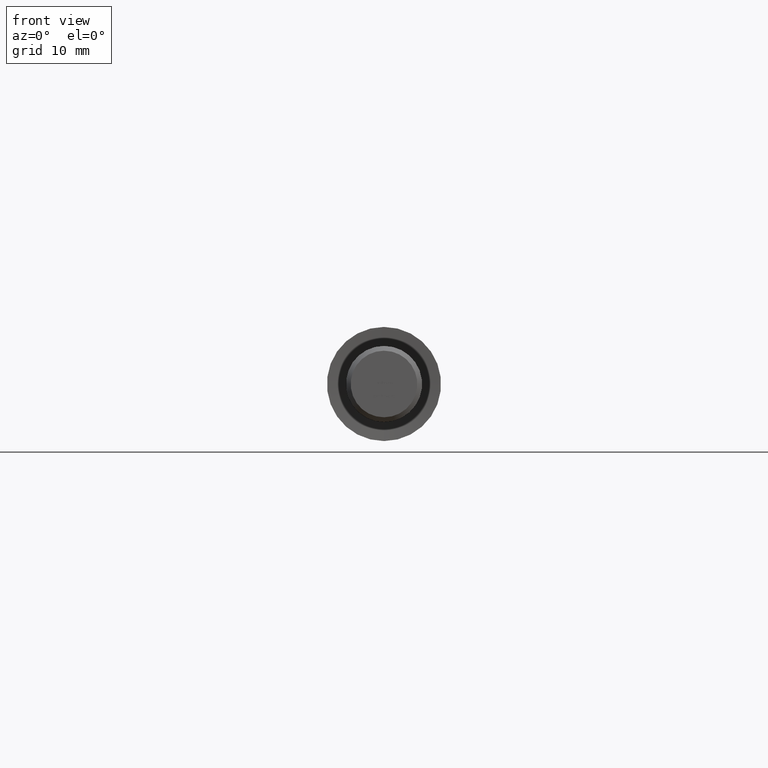
[diagram: clean part render]
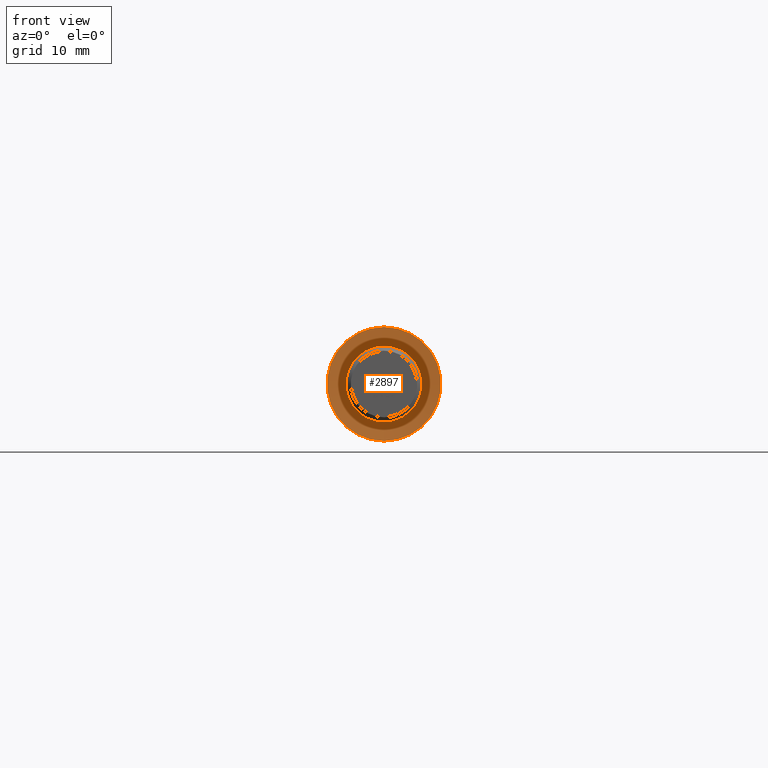
[diagram: same view with one face highlighted and labeled with its STEP entity id]
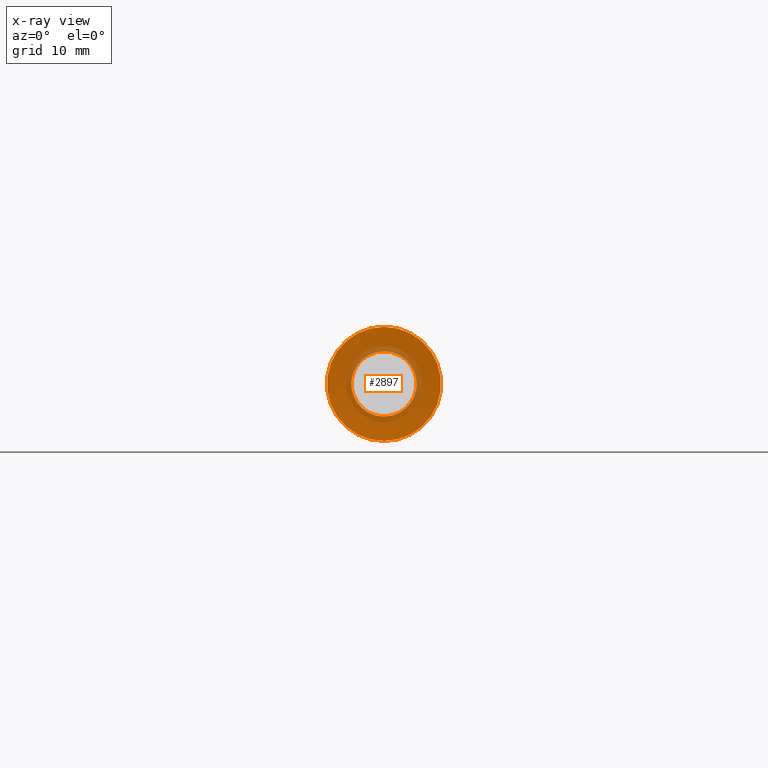
[diagram: x-ray of the same camera — body ghosted, the highlighted face saturated]
A machine part, front view. The second image highlights one B-rep face of the part: STEP entity #2897.
The next image is the same camera in x-ray: the body ghosted, the highlighted face saturated — about 18% of this face is hidden behind the body in this view.
In plain terms, the highlighted conical surface has half-angle 85 deg.
Its self-contained STEP definition (entity closure, byte-faithful):
#1421 = DIRECTION ( 'NONE',  ( 0.000000000000000000, 0.000000000000000000, -1.000000000000000000 ) ) ;
#1546 = CARTESIAN_POINT ( 'NONE',  ( 0.000000000000000000, 0.2253502873125028116, 0.000000000000000000 ) ) ;
#2897 = ADVANCED_FACE ( 'NONE', ( #12618, #10743 ), #9657, .F. ) ;
#4171 = EDGE_LOOP ( 'NONE', ( #7356 ) ) ;
#4565 = VERTEX_POINT ( 'NONE', #12261 ) ;
#4755 = DIRECTION ( 'NONE',  ( 0.000000000000000000, 0.000000000000000000, -1.000000000000000000 ) ) ;
#5045 = CIRCLE ( 'NONE', #11776, 3.424234429575815142 ) ;
#5265 = EDGE_CURVE ( 'NONE', #4565, #4565, #11034, .T. ) ;
#5460 = ORIENTED_EDGE ( 'NONE', *, *, #5265, .T. ) ;
#5676 = CARTESIAN_POINT ( 'NONE',  ( 0.000000000000000000, 0.2253502873125028116, 0.000000000000000000 ) ) ;
#5765 = AXIS2_PLACEMENT_3D ( 'NONE', #12584, #8671, #4755 ) ;
#6342 = EDGE_CURVE ( 'NONE', #7851, #7851, #5045, .T. ) ;
#6467 = AXIS2_PLACEMENT_3D ( 'NONE', #1546, #6528, #1421 ) ;
#6528 = DIRECTION ( 'NONE',  ( -0.000000000000000000, -1.000000000000000000, -0.000000000000000000 ) ) ;
#7223 = CARTESIAN_POINT ( 'NONE',  ( 0.000000000000000000, 0.2253502873125028116, -3.424234429575815142 ) ) ;
#7356 = ORIENTED_EDGE ( 'NONE', *, *, #6342, .F. ) ;
#7628 = DIRECTION ( 'NONE',  ( -0.000000000000000000, -1.000000000000000000, -0.000000000000000000 ) ) ;
#7851 = VERTEX_POINT ( 'NONE', #7223 ) ;
#8637 = DIRECTION ( 'NONE',  ( 0.000000000000000000, 0.000000000000000000, -1.000000000000000000 ) ) ;
#8671 = DIRECTION ( 'NONE',  ( -0.000000000000000000, -1.000000000000000000, -0.000000000000000000 ) ) ;
#9657 = CONICAL_SURFACE ( 'NONE', #6467, 3.424234429575815142, 1.483529864195179737 ) ;
#10743 = FACE_BOUND ( 'NONE', #4171, .T. ) ;
#11034 = CIRCLE ( 'NONE', #5765, 6.000000000000003553 ) ;
#11776 = AXIS2_PLACEMENT_3D ( 'NONE', #5676, #7628, #8637 ) ;
#12261 = CARTESIAN_POINT ( 'NONE',  ( 0.000000000000000000, 0.000000000000000000, -6.000000000000003553 ) ) ;
#12584 = CARTESIAN_POINT ( 'NONE',  ( 0.000000000000000000, 0.000000000000000000, 0.000000000000000000 ) ) ;
#12618 = FACE_OUTER_BOUND ( 'NONE', #12800, .T. ) ;
#12800 = EDGE_LOOP ( 'NONE', ( #5460 ) ) ;